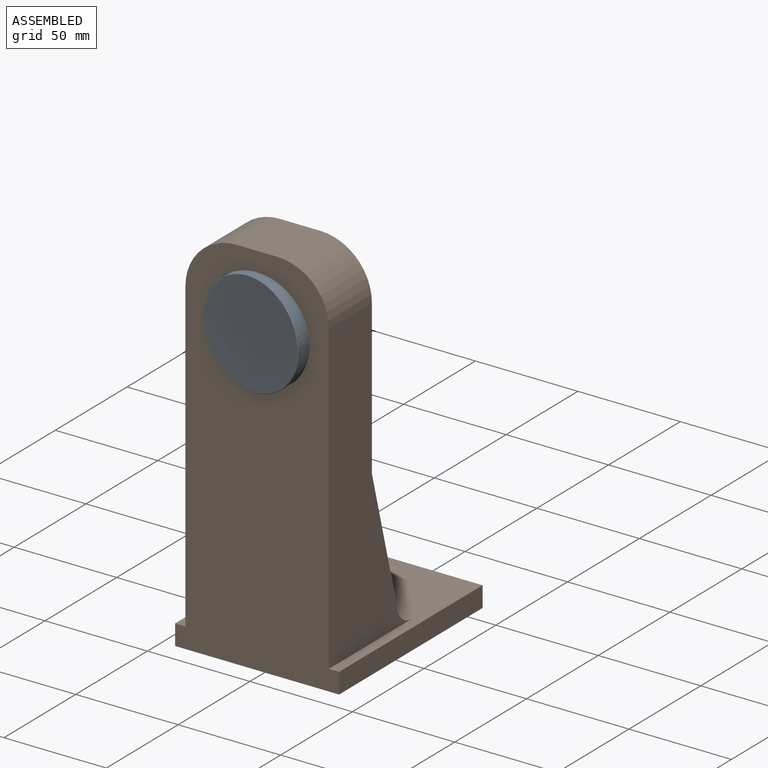
[diagram: assembled view]
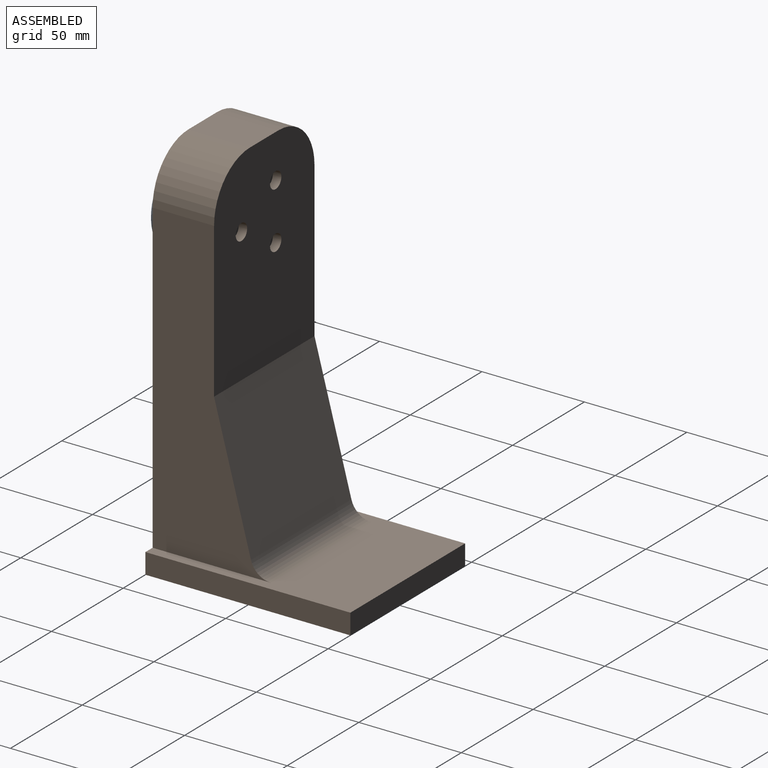
[diagram: assembled view, second angle]
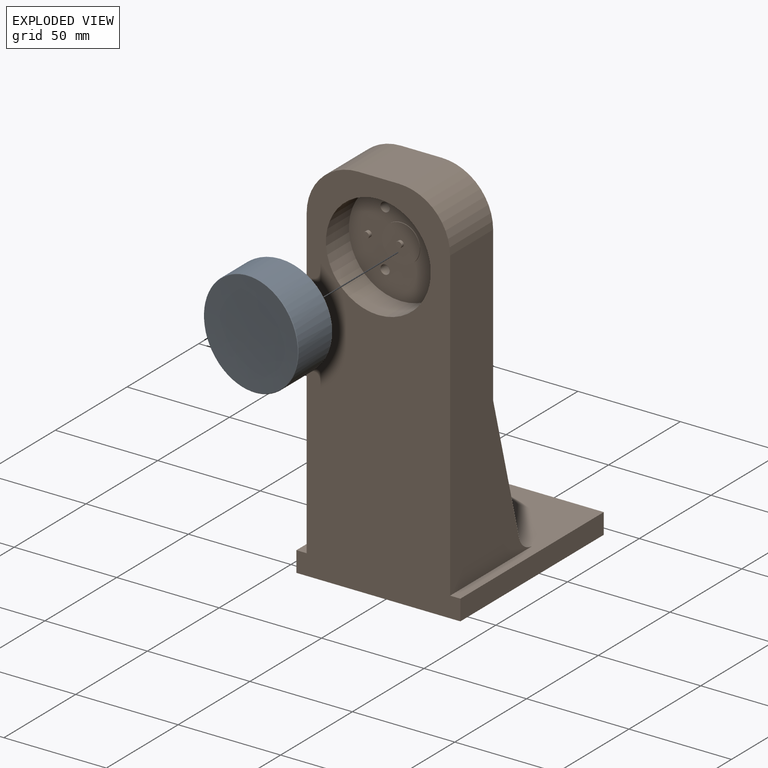
[diagram: exploded view]
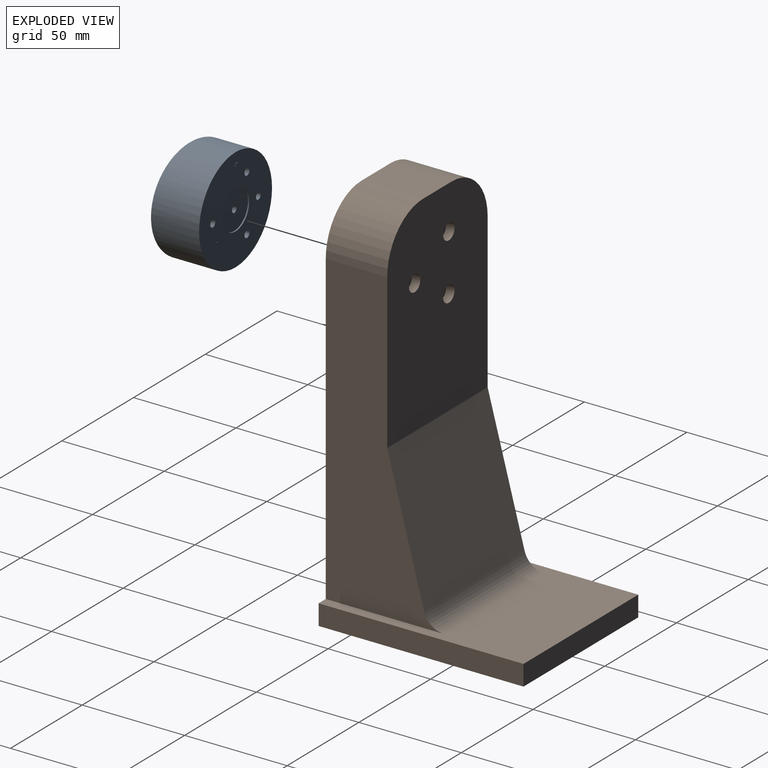
[diagram: exploded view, second angle]
ASSEMBLY  parts=2 mates=2
PART A: 49 faces, bbox 55x23.7x64.2 mm
  f0: bspline ~50.77x50.75mm, area 45.7mm2, adj f11,f16
  f1: cone r=0.4mm half-angle=45deg, axis (0,-1,0), area 0.7mm2, adj f12
  f2: cylinder r=1.59mm len=3.19mm, axis (0,-1,0), area 25.4mm2, adj f14,f15
  f3: cylinder r=9.53mm len=19.05mm, axis (0,-1,0), area 38mm2, adj f12,f14
  f4: cylinder r=1.59mm len=3.19mm, axis (0,-1,0), area 31.8mm2, adj f12,f13
  f5: cylinder r=1.73mm len=5.33mm, axis (0,-1,0), area 57.9mm2, adj f6,f12
  f6: cone r=1.73mm half-angle=59deg, axis (0,-1,0), area 10.9mm2, adj f5
  f7: cylinder r=1.73mm len=5.33mm, axis (0,-1,0), area 57.9mm2, adj f8,f12
  f8: cone r=1.73mm half-angle=59deg, axis (0,-1,0), area 10.9mm2, adj f7
  f9: cylinder r=1.73mm len=5.33mm, axis (0,-1,0), area 57.9mm2, adj f10,f12
  f10: cone r=1.73mm half-angle=59deg, axis (0,-1,0), area 10.9mm2, adj f9
  f11: cylinder r=25.4mm len=50.8mm, axis (0,-1,0), area 3210.7mm2, adj f0,f12
  f12: plane 50.8x50.8mm, normal (0,-1,0), area 1704mm2, adj f1,f3,f4,f5,f7,f9,f11,f17
  f13: plane 3.19x3.19mm, normal (0,-1,0), area 8mm2, adj f4
  f14: plane 19.05x19.05mm, normal (0,-1,0), area 277mm2, adj f2,f3
  f15: plane 3.19x3.19mm, normal (0,-1,0), area 8mm2, adj f2
  f16: bspline ~64.22x54.96mm, area 2014.8mm2, adj f0
  f17: plane 0.76x0.16mm, normal (0.87,0,-0.5), area 0.1mm2, adj f12,f18,f22,f23
  f18: plane 0.76x0.29mm, normal (0,0,-1), area 0.2mm2, adj f12,f17,f19,f23
  f19: plane 1.59x0.76mm, normal (-1,0,0), area 1.2mm2, adj f12,f18,f20,f23
  f20: plane 0.76x0.14mm, normal (0,0,1), area 0.1mm2, adj f12,f19,f21,f23
  f21: plane 1.42x0.76mm, normal (1,0,0), area 1.1mm2, adj f12,f20,f22,f23
  f22: plane 0.76x0.24mm, normal (0,0,1), area 0.2mm2, adj f12,f17,f21,f23
  f23: plane 1.59x0.39mm, normal (0,-1,0), area 0.3mm2, adj f17,f18,f19,f20,f21,f22
  f24: plane 0.76x0.65mm, normal (0,0,-1), area 0.5mm2, adj f12,f25,f37,f38
  f25: plane 0.76x0.16mm, normal (-1,0,0), area 0.1mm2, adj f12,f24,f26,f38
  f26: plane 0.76x0.54mm, normal (0,0,1), area 0.4mm2, adj f12,f25,f27,f38
  f27: plane 0.76x0.42mm, normal (-0.98,0,0.2), area 0.3mm2, adj f12,f26,f28,f38
  f28: extruded ~0.76x0.19mm, area 0.1mm2, adj f12,f27,f29,f38
  f29: extruded ~0.76x0.52mm, area 0.6mm2, adj f12,f28,f30,f38
  f30: extruded ~0.76x0.56mm, area 0.7mm2, adj f12,f29,f31,f38
  f31: extruded ~0.76x0.48mm, area 0.6mm2, adj f12,f30,f32,f38
  f32: plane 0.76x0.14mm, normal (0,0,-1), area 0.1mm2, adj f12,f31,f33,f38
  f33: extruded ~0.76x0.35mm, area 0.4mm2, adj f12,f32,f34,f38
  f34: extruded ~0.76x0.4mm, area 0.5mm2, adj f12,f33,f35,f38
  f35: extruded ~0.76x0.38mm, area 0.4mm2, adj f12,f34,f36,f38
  f36: extruded ~0.76x0.35mm, area 0.3mm2, adj f12,f35,f37,f38
  f37: plane 0.79x0.76mm, normal (0.98,0,-0.2), area 0.6mm2, adj f12,f24,f36,f38
  f38: plane 1.63x1.04mm, normal (0,-1,0), area 0.5mm2, adj f24,f25,f26,f27,f28,f29,f30,f31
  f39: extruded ~0.76x0.37mm, area 0.4mm2, adj f12,f40,f42,f43
  f40: extruded ~0.76x0.38mm, area 0.4mm2, adj f12,f39,f41,f43
  f41: extruded ~0.76x0.38mm, area 0.4mm2, adj f12,f40,f42,f43
  f42: extruded ~0.76x0.38mm, area 0.4mm2, adj f12,f39,f41,f43
  f43: plane 0.75x0.73mm, normal (0,-1,0), area 0.3mm2, adj f39,f40,f41,f42,f44,f45,f46,f47
  f44: extruded ~0.76x0.24mm, area 0.3mm2, adj f43,f45,f47,f48
  f45: extruded ~0.76x0.24mm, area 0.3mm2, adj f43,f44,f46,f48
  f46: extruded ~0.76x0.24mm, area 0.3mm2, adj f43,f45,f47,f48
  f47: extruded ~0.76x0.25mm, area 0.3mm2, adj f43,f44,f46,f48
  f48: plane 0.49x0.47mm, normal (0,-1,0), area 0.2mm2, adj f44,f45,f46,f47
PART B: 31 faces, bbox 80x100x185 mm
  f0: plane 150x57.67mm, normal (1,0,0), area 5257.7mm2, adj f2,f6,f9,f25,f26,f30
  f1: plane 150x57.67mm, normal (-1,0,0), area 5257.7mm2, adj f2,f6,f8,f25,f26,f30
  f2: plane 100.36x70mm, normal (0,1,0), area 6608.4mm2, adj f0,f1,f3,f8,f9,f18,f21,f24
  f3: plane 30x20mm, normal (0,0,1), area 600mm2, adj f2,f6,f8,f9
  f4: plane 100x80mm, normal (0,0,-1), area 8000mm2, adj f6,f27,f28,f29
  f5: cylinder r=25.6mm len=51.2mm, axis (0,1,0), area 2573.6mm2, adj f6,f7
  f6: plane 185x80mm, normal (0,-1,0), area 10722.9mm2, adj f0,f1,f3,f4,f5,f8,f9,f26
  f7: plane 51.2x51.2mm, normal (0,-1,0), area 1735.4mm2, adj f5,f11,f12,f16,f19,f22
  f8: cylinder r=25mm len=30mm, axis (0,-1,0), area 1178.1mm2, adj f1,f2,f3,f6
  f9: cylinder r=25mm len=30mm, axis (0,1,0), area 1178.1mm2, adj f0,f2,f3,f6
  f10: plane 18.5x18.5mm, normal (0,-1,0), area 261.7mm2, adj f11,f14
  f11: cylinder r=9.25mm len=18.5mm, axis (0,1,0), area 23.2mm2, adj f7,f10
  f12: cylinder r=1.5mm len=3mm, axis (0,1,0), area 18.8mm2, adj f7,f13
  f13: plane 3x3mm, normal (0,-1,0), area 7.1mm2, adj f12
  f14: cylinder r=1.5mm len=3mm, axis (0,1,0), area 15.1mm2, adj f10,f15
  f15: plane 3x3mm, normal (0,-1,0), area 7.1mm2, adj f14
  f16: cylinder r=2.25mm len=9.83mm, axis (0,1,0), area 138.9mm2, adj f7,f17
  f17: plane 7.94x7.94mm, normal (0,1,0), area 33.6mm2, adj f16,f18
  f18: cylinder r=3.97mm len=7.94mm, axis (0,1,0), area 103.9mm2, adj f2,f17
  f19: cylinder r=2.25mm len=9.83mm, axis (0,1,0), area 138.9mm2, adj f7,f20
  f20: plane 7.94x7.94mm, normal (0,1,0), area 33.6mm2, adj f19,f21
  f21: cylinder r=3.97mm len=7.94mm, axis (0,1,0), area 103.9mm2, adj f2,f20
  f22: cylinder r=2.25mm len=9.83mm, axis (0,1,0), area 138.9mm2, adj f7,f23
  f23: plane 7.94x7.94mm, normal (0,1,0), area 33.6mm2, adj f22,f24
  f24: cylinder r=3.97mm len=7.94mm, axis (0,1,0), area 103.9mm2, adj f2,f23
  f25: plane 70x67.23mm, normal (0,0.97,0.26), area 4872.1mm2, adj f0,f1,f2,f30
  f26: plane 100x80mm, normal (0,0,1), area 3962.9mm2, adj f0,f1,f6,f27,f28,f29,f30
  f27: plane 80x10mm, normal (0,1,0), area 800mm2, adj f4,f26,f28,f29
  f28: plane 100x10mm, normal (-1,0,0), area 1000mm2, adj f4,f6,f26,f27
  f29: plane 100x10mm, normal (1,0,0), area 1000mm2, adj f4,f6,f26,f27
  f30: cylinder r=10mm len=70mm, axis (1,0,0), area 916.3mm2, adj f0,f1,f25,f26
PLACE A rot(axis=(0,0,1),180deg) t=(0.6,20.25,-0.02)mm
PLACE B t=(0.57,34.25,-0.02)mm
MATE planar A.f2 <-> B.f7  axis (0,1,0) through (0.6,20.25,-0.02)mm
MATE slider A.f5 <-> B.f19  axis (0,1,0) through (16.47,20.25,-0.02)mm
